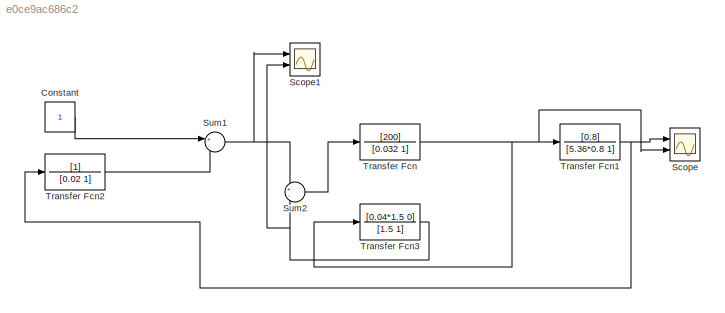
MODEL slx_e0ce9ac686c2
KIND model
BLOCK [Constant] Constant
BLOCK [Scope] Scope
  Floating = off
  NumInputPorts = 2
  Ports = [2]
  ShowLegends = off
  YMax = 1.5~1.5
  YMin = 0~0
BLOCK [Scope] Scope1
  Floating = off
  NumInputPorts = 2
  Ports = [2]
  SaveName = ScopeData1
  ShowLegends = off
  YMax = 1.5~1.5
  YMin = 0~0
  ZoomMode = yonly
BLOCK [Sum] Sum1
  IconShape = round
  InputSameDT = off
  Inputs = +-
  OutDataTypeStr = Inherit: Inherit via internal rule
  Ports = [2, 1]
  SaturateOnIntegerOverflow = off
BLOCK [Sum] Sum2
  IconShape = round
  InputSameDT = off
  Inputs = +-
  OutDataTypeStr = Inherit: Inherit via internal rule
  Ports = [2, 1]
  SaturateOnIntegerOverflow = off
BLOCK [TransferFcn] Transfer Fcn
  Denominator = [0.032 1]
  Numerator = [200]
BLOCK [TransferFcn] Transfer Fcn1
  Denominator = [5.36*0.8 1]
  Numerator = [0.8]
BLOCK [TransferFcn] Transfer Fcn2
  Denominator = [0.02 1]
BLOCK [TransferFcn] Transfer Fcn3
  Denominator = [1.5 1]
  Numerator = [0.04*1.5 0]
LINE Constant:1 -> Sum1:1
NET Sum1:1 -> Scope1:1, Sum2:1
LINE Sum2:1 -> Transfer Fcn:1
NET Transfer Fcn1:1 -> Scope:1, Transfer Fcn2:1
LINE Transfer Fcn2:1 -> Sum1:2
NET Transfer Fcn3:1 -> Scope1:2, Sum2:2
NET Transfer Fcn:1 -> Scope:2, Transfer Fcn1:1, Transfer Fcn3:1
note: NET lines group one-source signal fan-out (src -> all destinations, sorted); 1:1 wires keep LINE
